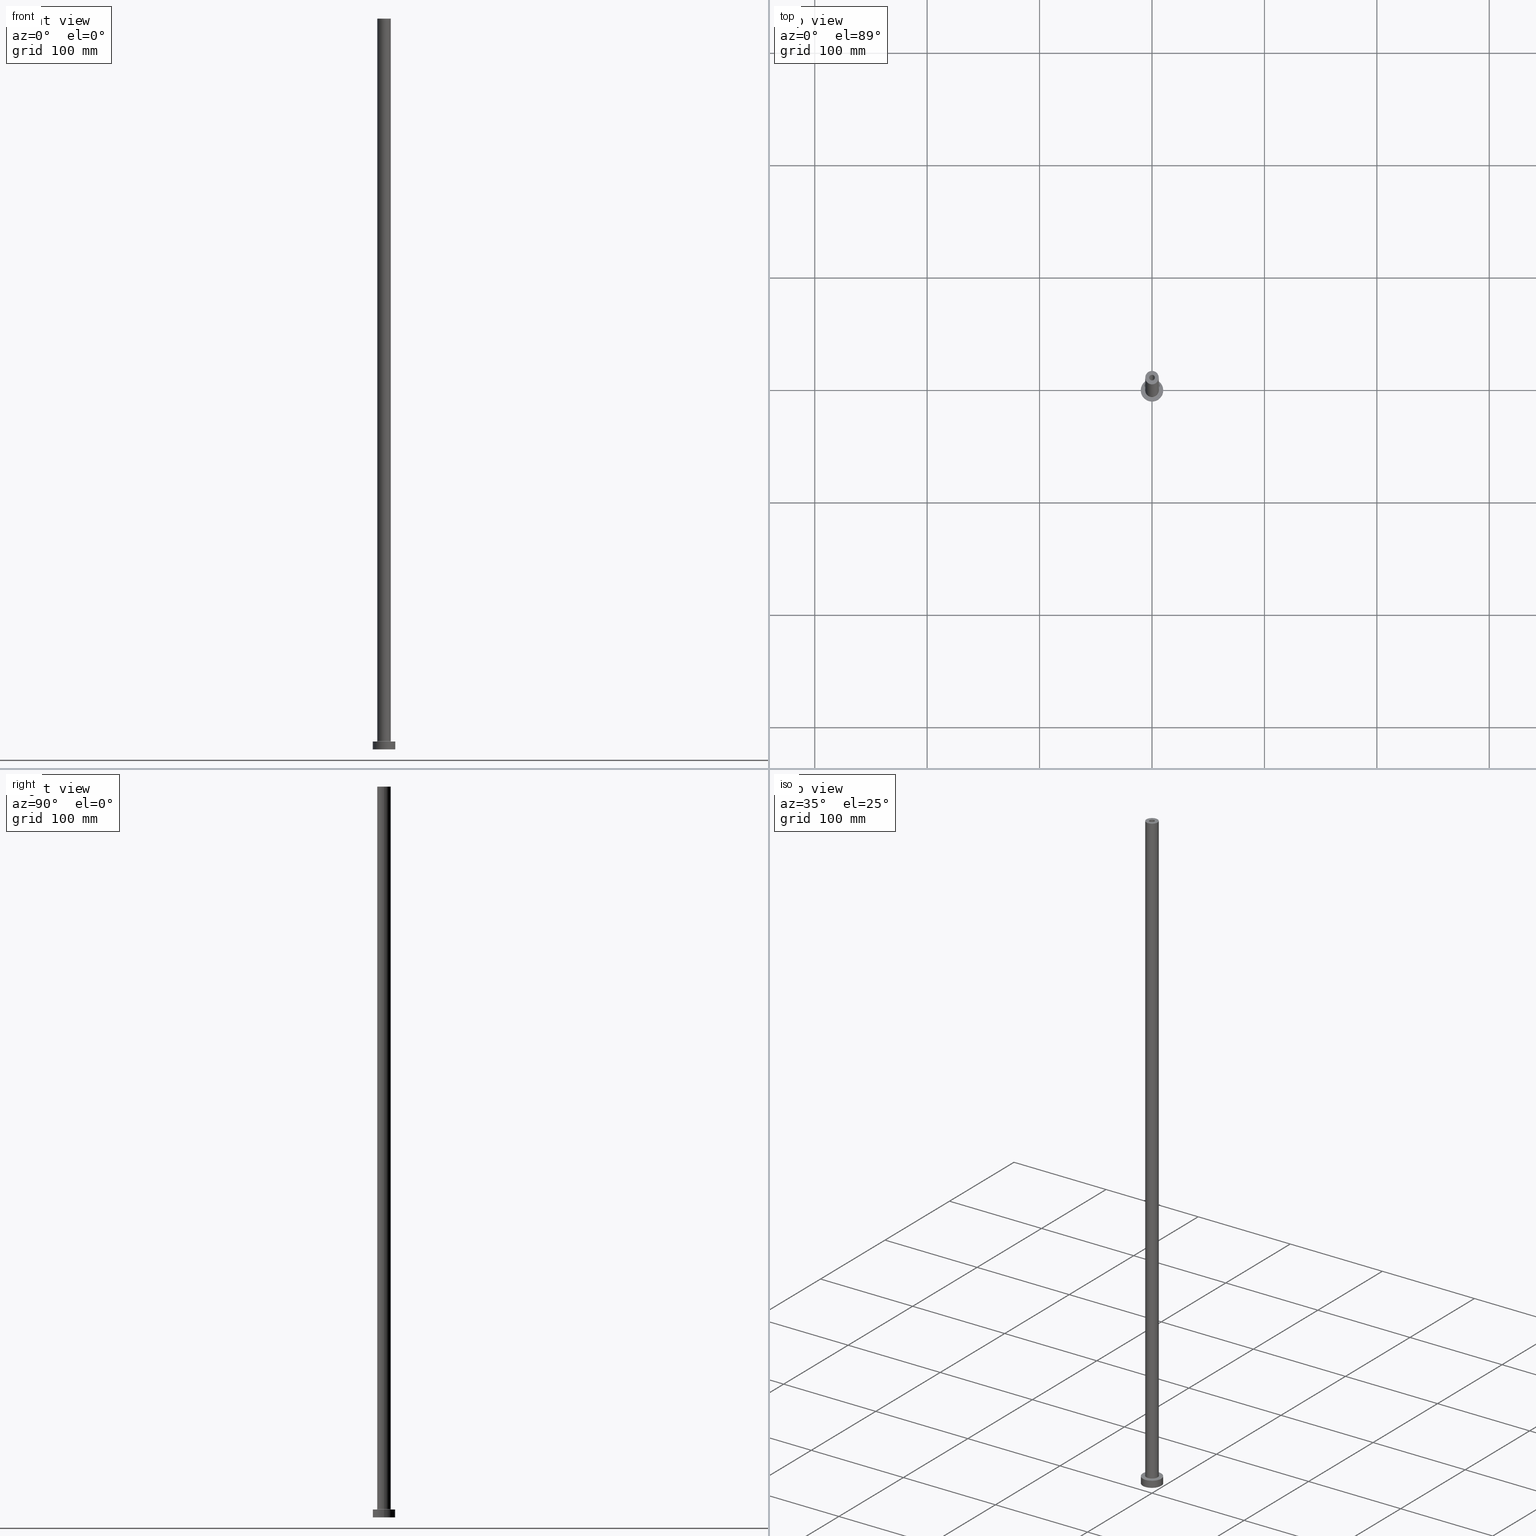
[diagram: canonical four-view strip — front | top / right | iso, engineering-drawing reading convention]
A machine part, canonical four-view strip (front | top / right | iso — engineering-drawing reading convention). The complete STEP part file that produces these views, byte-faithful:
ISO-10303-21;
HEADER;
FILE_DESCRIPTION (( 'STEP AP203' ),
    '1' );
FILE_NAME ('c614.STEP',
    '2023-02-13T16:44:19',
    ( '' ),
    ( '' ),
    'SwSTEP 2.0',
    'SolidWorks 2019',
    '' );
FILE_SCHEMA (( 'CONFIG_CONTROL_DESIGN' ));
ENDSEC;

DATA;
#1 = CARTESIAN_POINT ( 'NONE',  ( 0.000000000000000000, 0.000000000000000000, 7.000000000000000000 ) ) ;
#2 = EDGE_LOOP ( 'NONE', ( #37, #399 ) ) ;
#3 = EDGE_CURVE ( 'NONE', #194, #169, #161, .T. ) ;
#4 = CYLINDRICAL_SURFACE ( 'NONE', #236, 10.00000000000000000 ) ;
#5 = AXIS2_PLACEMENT_3D ( 'NONE', #74, #361, #134 ) ;
#6 = CARTESIAN_POINT ( 'NONE',  ( 2.500000000000000000, 3.061616997868383141E-16, 605.0000000000000000 ) ) ;
#7 = FACE_OUTER_BOUND ( 'NONE', #2, .T. ) ;
#8 = DIRECTION ( 'NONE',  ( 1.000000000000000000, 0.000000000000000000, 0.000000000000000000 ) ) ;
#9 = ORIENTED_EDGE ( 'NONE', *, *, #254, .T. ) ;
#10 = CIRCLE ( 'NONE', #128, 6.000000000000000888 ) ;
#11 = COORDINATED_UNIVERSAL_TIME_OFFSET ( 1, 0, .AHEAD. ) ;
#12 = CARTESIAN_POINT ( 'NONE',  ( 10.00000000000000000, 1.224646799147353256E-15, 7.000000000000000000 ) ) ;
#13 = AXIS2_PLACEMENT_3D ( 'NONE', #96, #208, #384 ) ;
#14 = VERTEX_POINT ( 'NONE', #289 ) ;
#15 = EDGE_CURVE ( 'NONE', #372, #260, #213, .T. ) ;
#16 = DIRECTION ( 'NONE',  ( -1.000000000000000000, 0.000000000000000000, 0.000000000000000000 ) ) ;
#17 = VERTEX_POINT ( 'NONE', #106 ) ;
#18 = LOCAL_TIME ( 17, 44, 19.00000000000000000, #11 ) ;
#19 = ORIENTED_EDGE ( 'NONE', *, *, #352, .T. ) ;
#20 = AXIS2_PLACEMENT_3D ( 'NONE', #86, #238, #51 ) ;
#21 = APPROVAL_ROLE ( '' ) ;
#22 = CARTESIAN_POINT ( 'NONE',  ( -2.500000000000000000, 0.000000000000000000, 650.0000000000000000 ) ) ;
#23 = ORIENTED_EDGE ( 'NONE', *, *, #435, .F. ) ;
#24 = CALENDAR_DATE ( 2023, 13, 2 ) ;
#25 = DIRECTION ( 'NONE',  ( 1.224646799147353207E-16, 1.000000000000000000, -0.000000000000000000 ) ) ;
#26 = EDGE_LOOP ( 'NONE', ( #233, #131, #402, #441 ) ) ;
#27 = LINE ( 'NONE', #382, #201 ) ;
#28 = APPROVAL_PERSON_ORGANIZATION ( #43, #111, #21 ) ;
#29 = ADVANCED_FACE ( 'NONE', ( #292 ), #258, .F. ) ;
#30 = DIRECTION ( 'NONE',  ( -0.000000000000000000, -0.000000000000000000, -1.000000000000000000 ) ) ;
#31 = CARTESIAN_POINT ( 'NONE',  ( -10.00000000000000000, 0.000000000000000000, 0.000000000000000000 ) ) ;
#32 = DIRECTION ( 'NONE',  ( 0.000000000000000000, 0.000000000000000000, 1.000000000000000000 ) ) ;
#33 = CC_DESIGN_PERSON_AND_ORGANIZATION_ASSIGNMENT ( #400, #204, ( #227 ) ) ;
#34 = AXIS2_PLACEMENT_3D ( 'NONE', #288, #100, #291 ) ;
#35 = FACE_OUTER_BOUND ( 'NONE', #187, .T. ) ;
#36 = DIRECTION ( 'NONE',  ( 1.000000000000000000, 0.000000000000000000, 0.000000000000000000 ) ) ;
#37 = ORIENTED_EDGE ( 'NONE', *, *, #443, .T. ) ;
#38 = CARTESIAN_POINT ( 'NONE',  ( 0.000000000000000000, 0.000000000000000000, 7.000000000000000000 ) ) ;
#39 = VECTOR ( 'NONE', #30, 1000.000000000000000 ) ;
#40 = DATE_AND_TIME ( #77, #151 ) ;
#41 = AXIS2_PLACEMENT_3D ( 'NONE', #406, #376, #446 ) ;
#42 = VERTEX_POINT ( 'NONE', #374 ) ;
#43 = PERSON_AND_ORGANIZATION ( #290, #306 ) ;
#44 = DIRECTION ( 'NONE',  ( 0.000000000000000000, 0.000000000000000000, -1.000000000000000000 ) ) ;
#45 = ADVANCED_FACE ( 'NONE', ( #268, #7 ), #114, .T. ) ;
#46 = DIRECTION ( 'NONE',  ( -0.000000000000000000, -0.000000000000000000, -1.000000000000000000 ) ) ;
#47 = EDGE_LOOP ( 'NONE', ( #109, #379 ) ) ;
#48 = AXIS2_PLACEMENT_3D ( 'NONE', #311, #451, #102 ) ;
#49 = FACE_BOUND ( 'NONE', #47, .T. ) ;
#50 = ORIENTED_EDGE ( 'NONE', *, *, #254, .F. ) ;
#51 = DIRECTION ( 'NONE',  ( 1.000000000000000000, 0.000000000000000000, -0.000000000000000000 ) ) ;
#52 = ORIENTED_EDGE ( 'NONE', *, *, #405, .F. ) ;
#53 = CARTESIAN_POINT ( 'NONE',  ( 6.000000000000000888, 7.347880794884120722E-16, 650.0000000000000000 ) ) ;
#54 = PERSON_AND_ORGANIZATION ( #290, #306 ) ;
#55 = AXIS2_PLACEMENT_3D ( 'NONE', #438, #396, #301 ) ;
#56 = DIRECTION ( 'NONE',  ( 1.000000000000000000, 0.000000000000000000, -0.000000000000000000 ) ) ;
#57 = SECURITY_CLASSIFICATION_LEVEL ( 'unclassified' ) ;
#58 = DIRECTION ( 'NONE',  ( 0.000000000000000000, 0.000000000000000000, -1.000000000000000000 ) ) ;
#59 = APPROVAL_ROLE ( '' ) ;
#60 = CARTESIAN_POINT ( 'NONE',  ( 0.000000000000000000, 0.000000000000000000, 650.0000000000000000 ) ) ;
#61 = ADVANCED_FACE ( 'NONE', ( #403 ), #156, .T. ) ;
#62 = VERTEX_POINT ( 'NONE', #266 ) ;
#63 = DIRECTION ( 'NONE',  ( 1.000000000000000000, 0.000000000000000000, -0.000000000000000000 ) ) ;
#64 = CIRCLE ( 'NONE', #158, 2.500000000000000000 ) ;
#65 = ORIENTED_EDGE ( 'NONE', *, *, #336, .F. ) ;
#66 = CARTESIAN_POINT ( 'NONE',  ( 0.000000000000000000, 0.000000000000000000, 0.000000000000000000 ) ) ;
#67 = EDGE_CURVE ( 'NONE', #169, #247, #340, .T. ) ;
#68 = DIRECTION ( 'NONE',  ( 0.000000000000000000, 0.000000000000000000, 1.000000000000000000 ) ) ;
#69 = DIRECTION ( 'NONE',  ( 1.000000000000000000, 0.000000000000000000, 0.000000000000000000 ) ) ;
#70 = CIRCLE ( 'NONE', #34, 2.649999999999999911 ) ;
#71 = AXIS2_PLACEMENT_3D ( 'NONE', #132, #250, #63 ) ;
#72 = DIRECTION ( 'NONE',  ( 1.000000000000000000, 0.000000000000000000, 0.000000000000000000 ) ) ;
#73 = DIRECTION ( 'NONE',  ( 1.000000000000000000, 0.000000000000000000, 0.000000000000000000 ) ) ;
#74 = CARTESIAN_POINT ( 'NONE',  ( 0.000000000000000000, 0.000000000000000000, 605.0000000000000000 ) ) ;
#75 = ORIENTED_EDGE ( 'NONE', *, *, #179, .T. ) ;
#76 = EDGE_CURVE ( 'NONE', #260, #372, #308, .T. ) ;
#77 = CALENDAR_DATE ( 2023, 13, 2 ) ;
#78 = AXIS2_PLACEMENT_3D ( 'NONE', #66, #259, #389 ) ;
#79 = APPROVAL_DATE_TIME ( #272, #362 ) ;
#80 = CARTESIAN_POINT ( 'NONE',  ( 0.000000000000000000, 0.000000000000000000, 7.499999999999951150 ) ) ;
#81 = ORIENTED_EDGE ( 'NONE', *, *, #352, .F. ) ;
#82 = EDGE_CURVE ( 'NONE', #224, #62, #401, .T. ) ;
#83 = CARTESIAN_POINT ( 'NONE',  ( 0.000000000000000000, 0.000000000000000000, 605.0000000000000000 ) ) ;
#84 = ORIENTED_EDGE ( 'NONE', *, *, #155, .T. ) ;
#85 = CARTESIAN_POINT ( 'NONE',  ( -10.00000000000000000, 0.000000000000000000, 7.000000000000000000 ) ) ;
#86 = CARTESIAN_POINT ( 'NONE',  ( 0.000000000000000000, 0.000000000000000000, 7.000000000000000000 ) ) ;
#87 = CARTESIAN_POINT ( 'NONE',  ( 0.000000000000000000, 0.000000000000000000, 7.000000000000000000 ) ) ;
#88 = CARTESIAN_POINT ( 'NONE',  ( -6.500000000000000888, 7.960204194457796463E-16, 6.999999999999975131 ) ) ;
#89 = AXIS2_PLACEMENT_3D ( 'NONE', #137, #99, #69 ) ;
#90 = FACE_OUTER_BOUND ( 'NONE', #323, .T. ) ;
#91 = EDGE_CURVE ( 'NONE', #194, #413, #271, .T. ) ;
#92 = CYLINDRICAL_SURFACE ( 'NONE', #264, 6.000000000000000888 ) ;
#93 = ORIENTED_EDGE ( 'NONE', *, *, #220, .T. ) ;
#94 = UNCERTAINTY_MEASURE_WITH_UNIT (LENGTH_MEASURE( 1.000000000000000082E-05 ), #142, 'distance_accuracy_value', 'NONE');
#95 = LINE ( 'NONE', #356, #39 ) ;
#96 = CARTESIAN_POINT ( 'NONE',  ( 0.000000000000000000, 0.000000000000000000, 0.000000000000000000 ) ) ;
#97 = APPROVAL_PERSON_ORGANIZATION ( #115, #362, #197 ) ;
#98 = AXIS2_PLACEMENT_3D ( 'NONE', #371, #46, #16 ) ;
#99 = DIRECTION ( 'NONE',  ( 0.000000000000000000, 0.000000000000000000, 1.000000000000000000 ) ) ;
#100 = DIRECTION ( 'NONE',  ( -0.000000000000000000, -0.000000000000000000, -1.000000000000000000 ) ) ;
#101 = EDGE_CURVE ( 'NONE', #17, #14, #398, .T. ) ;
#102 = DIRECTION ( 'NONE',  ( 1.000000000000000000, 0.000000000000000000, 0.000000000000000000 ) ) ;
#103 = CIRCLE ( 'NONE', #430, 10.00000000000000000 ) ;
#104 = DIRECTION ( 'NONE',  ( -0.000000000000000000, -0.000000000000000000, -1.000000000000000000 ) ) ;
#105 = ADVANCED_FACE ( 'NONE', ( #116 ), #297, .F. ) ;
#106 = CARTESIAN_POINT ( 'NONE',  ( 2.649999999999999911, 3.245314017740485469E-16, 605.0000000000000000 ) ) ;
#107 = CARTESIAN_POINT ( 'NONE',  ( 2.500000000000000000, 3.061616997868383141E-16, 650.0000000000000000 ) ) ;
#108 = FACE_OUTER_BOUND ( 'NONE', #225, .T. ) ;
#109 = ORIENTED_EDGE ( 'NONE', *, *, #15, .T. ) ;
#110 = ADVANCED_FACE ( 'NONE', ( #108 ), #355, .F. ) ;
#111 = APPROVAL ( #380, 'NEUR�EN�' ) ;
#112 = CALENDAR_DATE ( 2023, 13, 2 ) ;
#113 = AXIS2_PLACEMENT_3D ( 'NONE', #149, #240, #343 ) ;
#114 = PLANE ( 'NONE',  #113 ) ;
#115 = PERSON_AND_ORGANIZATION ( #290, #306 ) ;
#116 = FACE_OUTER_BOUND ( 'NONE', #191, .T. ) ;
#117 = ORIENTED_EDGE ( 'NONE', *, *, #101, .T. ) ;
#118 = FACE_OUTER_BOUND ( 'NONE', #162, .T. ) ;
#119 =( GEOMETRIC_REPRESENTATION_CONTEXT ( 3 ) GLOBAL_UNCERTAINTY_ASSIGNED_CONTEXT ( ( #94 ) ) GLOBAL_UNIT_ASSIGNED_CONTEXT ( ( #142, #335, #274 ) ) REPRESENTATION_CONTEXT ( 'NONE', 'WORKASPACE' ) );
#120 = EDGE_CURVE ( 'NONE', #62, #372, #408, .T. ) ;
#121 = DIRECTION ( 'NONE',  ( -0.000000000000000000, -0.000000000000000000, -1.000000000000000000 ) ) ;
#122 = EDGE_LOOP ( 'NONE', ( #65, #237 ) ) ;
#123 = CARTESIAN_POINT ( 'NONE',  ( 10.00000000000000000, 1.224646799147353256E-15, 7.000000000000000000 ) ) ;
#124 = DATE_TIME_ROLE ( 'creation_date' ) ;
#125 = CARTESIAN_POINT ( 'NONE',  ( 10.00000000000000000, 1.224646799147353256E-15, 0.000000000000000000 ) ) ;
#126 = EDGE_CURVE ( 'NONE', #232, #62, #222, .T. ) ;
#127 = COORDINATED_UNIVERSAL_TIME_OFFSET ( 1, 0, .AHEAD. ) ;
#128 = AXIS2_PLACEMENT_3D ( 'NONE', #257, #214, #394 ) ;
#129 = FACE_OUTER_BOUND ( 'NONE', #434, .T. ) ;
#130 = DIRECTION ( 'NONE',  ( -1.000000000000000000, 0.000000000000000000, 0.000000000000000000 ) ) ;
#131 = ORIENTED_EDGE ( 'NONE', *, *, #443, .F. ) ;
#132 = CARTESIAN_POINT ( 'NONE',  ( 0.000000000000000000, 0.000000000000000000, 605.0000000000000000 ) ) ;
#133 = ORIENTED_EDGE ( 'NONE', *, *, #267, .F. ) ;
#134 = DIRECTION ( 'NONE',  ( 1.000000000000000000, 0.000000000000000000, 0.000000000000000000 ) ) ;
#135 = AXIS2_PLACEMENT_3D ( 'NONE', #176, #219, #327 ) ;
#136 = AXIS2_PLACEMENT_3D ( 'NONE', #83, #302, #147 ) ;
#137 = CARTESIAN_POINT ( 'NONE',  ( 0.000000000000000000, 0.000000000000000000, 605.0000000000000000 ) ) ;
#138 = CARTESIAN_POINT ( 'NONE',  ( 0.000000000000000000, 0.000000000000000000, 7.000000000000000000 ) ) ;
#139 = CARTESIAN_POINT ( 'NONE',  ( 0.000000000000000000, 0.000000000000000000, 0.000000000000000000 ) ) ;
#140 = DIRECTION ( 'NONE',  ( 1.000000000000000000, 0.000000000000000000, 0.000000000000000000 ) ) ;
#141 = ADVANCED_FACE ( 'NONE', ( #49, #118 ), #269, .T. ) ;
#142 =( LENGTH_UNIT ( ) NAMED_UNIT ( * ) SI_UNIT ( .MILLI., .METRE. ) );
#143 = AXIS2_PLACEMENT_3D ( 'NONE', #190, #439, #262 ) ;
#144 = LINE ( 'NONE', #175, #285 ) ;
#145 = VERTEX_POINT ( 'NONE', #273 ) ;
#146 = ADVANCED_FACE ( 'NONE', ( #159, #90 ), #351, .F. ) ;
#147 = DIRECTION ( 'NONE',  ( 1.000000000000000000, 0.000000000000000000, 0.000000000000000000 ) ) ;
#148 = CC_DESIGN_PERSON_AND_ORGANIZATION_ASSIGNMENT ( #450, #265, ( #397 ) ) ;
#149 = CARTESIAN_POINT ( 'NONE',  ( 0.000000000000000000, 0.000000000000000000, 650.0000000000000000 ) ) ;
#150 = ORIENTED_EDGE ( 'NONE', *, *, #336, .T. ) ;
#151 = LOCAL_TIME ( 17, 44, 19.00000000000000000, #411 ) ;
#152 = APPROVAL_STATUS ( 'not_yet_approved' ) ;
#153 = CARTESIAN_POINT ( 'NONE',  ( 6.000000000000000888, 7.347880794884120722E-16, 650.0000000000000000 ) ) ;
#154 = VERTEX_POINT ( 'NONE', #246 ) ;
#155 = EDGE_CURVE ( 'NONE', #344, #390, #27, .T. ) ;
#156 = CYLINDRICAL_SURFACE ( 'NONE', #98, 6.000000000000000888 ) ;
#157 = ORIENTED_EDGE ( 'NONE', *, *, #448, .T. ) ;
#158 = AXIS2_PLACEMENT_3D ( 'NONE', #217, #32, #72 ) ;
#159 = FACE_BOUND ( 'NONE', #458, .T. ) ;
#160 = AXIS2_PLACEMENT_3D ( 'NONE', #337, #444, #44 ) ;
#161 = CIRCLE ( 'NONE', #333, 10.00000000000000000 ) ;
#162 = EDGE_LOOP ( 'NONE', ( #319, #385 ) ) ;
#163 = APPLICATION_PROTOCOL_DEFINITION ( 'international standard', 'config_control_design', 1994, #425 ) ;
#164 = FACE_BOUND ( 'NONE', #442, .T. ) ;
#165 = ADVANCED_FACE ( 'NONE', ( #211 ), #92, .T. ) ;
#166 = ORIENTED_EDGE ( 'NONE', *, *, #82, .T. ) ;
#167 = PERSON_AND_ORGANIZATION_ROLE ( 'design_supplier' ) ;
#168 = FACE_OUTER_BOUND ( 'NONE', #122, .T. ) ;
#169 = VERTEX_POINT ( 'NONE', #123 ) ;
#170 = CALENDAR_DATE ( 2023, 13, 2 ) ;
#171 = CC_DESIGN_SECURITY_CLASSIFICATION ( #227, ( #397 ) ) ;
#172 = PLANE ( 'NONE',  #279 ) ;
#173 = DIRECTION ( 'NONE',  ( -1.000000000000000000, 0.000000000000000000, 0.000000000000000000 ) ) ;
#174 = EDGE_LOOP ( 'NONE', ( #239, #117, #364, #395 ) ) ;
#175 = CARTESIAN_POINT ( 'NONE',  ( -2.649999999999999911, 0.000000000000000000, 612.4953318805775098 ) ) ;
#176 = CARTESIAN_POINT ( 'NONE',  ( 0.000000000000000000, 0.000000000000000000, 650.0000000000000000 ) ) ;
#177 = PRODUCT_DEFINITION_SHAPE ( 'NONE', 'NONE',  #358 ) ;
#178 = EDGE_LOOP ( 'NONE', ( #23, #228 ) ) ;
#179 = EDGE_CURVE ( 'NONE', #154, #321, #440, .T. ) ;
#180 = DIRECTION ( 'NONE',  ( 0.000000000000000000, 0.000000000000000000, 1.000000000000000000 ) ) ;
#181 = EDGE_LOOP ( 'NONE', ( #215, #256, #407, #218 ) ) ;
#182 = DIRECTION ( 'NONE',  ( 1.000000000000000000, 0.000000000000000000, 0.000000000000000000 ) ) ;
#183 = CC_DESIGN_PERSON_AND_ORGANIZATION_ASSIGNMENT ( #54, #231, ( #330 ) ) ;
#184 = DATE_TIME_ROLE ( 'classification_date' ) ;
#185 = DIRECTION ( 'NONE',  ( 1.000000000000000000, 0.000000000000000000, 0.000000000000000000 ) ) ;
#186 = DIRECTION ( 'NONE',  ( -0.000000000000000000, -0.000000000000000000, -1.000000000000000000 ) ) ;
#187 = EDGE_LOOP ( 'NONE', ( #207, #326, #419, #283 ) ) ;
#188 = APPROVAL_DATE_TIME ( #310, #111 ) ;
#189 = CIRCLE ( 'NONE', #135, 6.000000000000000888 ) ;
#190 = CARTESIAN_POINT ( 'NONE',  ( 0.000000000000000000, 0.000000000000000000, 7.499999999999951150 ) ) ;
#191 = EDGE_LOOP ( 'NONE', ( #432, #93, #75, #348 ) ) ;
#192 = EDGE_CURVE ( 'NONE', #232, #260, #325, .T. ) ;
#193 = CARTESIAN_POINT ( 'NONE',  ( 0.000000000000000000, 0.000000000000000000, 612.4953318805775098 ) ) ;
#194 = VERTEX_POINT ( 'NONE', #249 ) ;
#195 = DIRECTION ( 'NONE',  ( 0.000000000000000000, 0.000000000000000000, -1.000000000000000000 ) ) ;
#196 = LOCAL_TIME ( 17, 44, 19.00000000000000000, #226 ) ;
#197 = APPROVAL_ROLE ( '' ) ;
#198 = APPROVAL_PERSON_ORGANIZATION ( #334, #329, #59 ) ;
#199 = ADVANCED_FACE ( 'NONE', ( #164, #168 ), #172, .F. ) ;
#200 = CC_DESIGN_PERSON_AND_ORGANIZATION_ASSIGNMENT ( #369, #244, ( #358 ) ) ;
#201 = VECTOR ( 'NONE', #58, 1000.000000000000000 ) ;
#202 = CARTESIAN_POINT ( 'NONE',  ( -6.000000000000000888, 0.000000000000000000, 7.499999999999951150 ) ) ;
#203 = EDGE_LOOP ( 'NONE', ( #52, #166, #445, #133 ) ) ;
#204 = PERSON_AND_ORGANIZATION_ROLE ( 'classification_officer' ) ;
#205 = ADVANCED_BREP_SHAPE_REPRESENTATION ( 'c614', ( #216, #55 ), #119 ) ;
#206 = CARTESIAN_POINT ( 'NONE',  ( -6.500000000000000888, 7.960204194457796463E-16, 7.499999999999951150 ) ) ;
#207 = ORIENTED_EDGE ( 'NONE', *, *, #192, .F. ) ;
#208 = DIRECTION ( 'NONE',  ( -0.000000000000000000, -0.000000000000000000, -1.000000000000000000 ) ) ;
#209 = ORIENTED_EDGE ( 'NONE', *, *, #315, .T. ) ;
#210 = AXIS2_PLACEMENT_3D ( 'NONE', #253, #180, #388 ) ;
#211 = FACE_OUTER_BOUND ( 'NONE', #203, .T. ) ;
#212 = ADVANCED_FACE ( 'NONE', ( #275 ), #453, .F. ) ;
#213 = CIRCLE ( 'NONE', #300, 6.500000000000000888 ) ;
#214 = DIRECTION ( 'NONE',  ( 0.000000000000000000, 0.000000000000000000, 1.000000000000000000 ) ) ;
#215 = ORIENTED_EDGE ( 'NONE', *, *, #381, .F. ) ;
#216 = MANIFOLD_SOLID_BREP ( 'Odebrat vysunut�m4', #409 ) ;
#217 = CARTESIAN_POINT ( 'NONE',  ( 0.000000000000000000, 0.000000000000000000, 650.0000000000000000 ) ) ;
#218 = ORIENTED_EDGE ( 'NONE', *, *, #91, .F. ) ;
#219 = DIRECTION ( 'NONE',  ( 0.000000000000000000, 0.000000000000000000, 1.000000000000000000 ) ) ;
#220 = EDGE_CURVE ( 'NONE', #17, #154, #378, .T. ) ;
#221 = CIRCLE ( 'NONE', #373, 2.500000000000000000 ) ;
#222 = CIRCLE ( 'NONE', #229, 6.000000000000000888 ) ;
#223 = CARTESIAN_POINT ( 'NONE',  ( 6.500000000000000888, 0.000000000000000000, 6.999999999999975131 ) ) ;
#224 = VERTEX_POINT ( 'NONE', #53 ) ;
#225 = EDGE_LOOP ( 'NONE', ( #303, #243, #370, #447 ) ) ;
#226 = COORDINATED_UNIVERSAL_TIME_OFFSET ( 1, 0, .AHEAD. ) ;
#227 = SECURITY_CLASSIFICATION ( '', '', #57 ) ;
#228 = ORIENTED_EDGE ( 'NONE', *, *, #448, .F. ) ;
#229 = AXIS2_PLACEMENT_3D ( 'NONE', #80, #299, #8 ) ;
#230 = AXIS2_PLACEMENT_3D ( 'NONE', #87, #186, #185 ) ;
#231 = PERSON_AND_ORGANIZATION_ROLE ( 'design_owner' ) ;
#232 = VERTEX_POINT ( 'NONE', #202 ) ;
#233 = ORIENTED_EDGE ( 'NONE', *, *, #82, .F. ) ;
#234 = ADVANCED_FACE ( 'NONE', ( #129 ), #420, .F. ) ;
#235 = DIRECTION ( 'NONE',  ( -1.000000000000000000, 0.000000000000000000, 0.000000000000000000 ) ) ;
#236 = AXIS2_PLACEMENT_3D ( 'NONE', #1, #427, #255 ) ;
#237 = ORIENTED_EDGE ( 'NONE', *, *, #365, .F. ) ;
#238 = DIRECTION ( 'NONE',  ( 0.000000000000000000, 0.000000000000000000, 1.000000000000000000 ) ) ;
#239 = ORIENTED_EDGE ( 'NONE', *, *, #220, .F. ) ;
#240 = DIRECTION ( 'NONE',  ( 0.000000000000000000, 0.000000000000000000, 1.000000000000000000 ) ) ;
#241 = ORIENTED_EDGE ( 'NONE', *, *, #3, .F. ) ;
#242 = DIRECTION ( 'NONE',  ( -0.000000000000000000, -0.000000000000000000, -1.000000000000000000 ) ) ;
#243 = ORIENTED_EDGE ( 'NONE', *, *, #192, .T. ) ;
#244 = PERSON_AND_ORGANIZATION_ROLE ( 'creator' ) ;
#245 = AXIS2_PLACEMENT_3D ( 'NONE', #318, #423, #383 ) ;
#246 = CARTESIAN_POINT ( 'NONE',  ( 2.649999999999999911, 3.245314017740485469E-16, 0.000000000000000000 ) ) ;
#247 = VERTEX_POINT ( 'NONE', #125 ) ;
#248 = APPROVAL_DATE_TIME ( #417, #329 ) ;
#249 = CARTESIAN_POINT ( 'NONE',  ( -10.00000000000000000, 0.000000000000000000, 7.000000000000000000 ) ) ;
#250 = DIRECTION ( 'NONE',  ( 0.000000000000000000, 0.000000000000000000, 1.000000000000000000 ) ) ;
#251 = CIRCLE ( 'NONE', #339, 10.00000000000000000 ) ;
#252 = DIRECTION ( 'NONE',  ( 0.000000000000000000, 0.000000000000000000, -1.000000000000000000 ) ) ;
#253 = CARTESIAN_POINT ( 'NONE',  ( 0.000000000000000000, 0.000000000000000000, 7.499999999999951150 ) ) ;
#254 = EDGE_CURVE ( 'NONE', #307, #145, #280, .T. ) ;
#255 = DIRECTION ( 'NONE',  ( -1.000000000000000000, 0.000000000000000000, 0.000000000000000000 ) ) ;
#256 = ORIENTED_EDGE ( 'NONE', *, *, #67, .T. ) ;
#257 = CARTESIAN_POINT ( 'NONE',  ( 0.000000000000000000, 0.000000000000000000, 650.0000000000000000 ) ) ;
#258 = CYLINDRICAL_SURFACE ( 'NONE', #41, 2.500000000000000000 ) ;
#259 = DIRECTION ( 'NONE',  ( 0.000000000000000000, 0.000000000000000000, 1.000000000000000000 ) ) ;
#260 = VERTEX_POINT ( 'NONE', #88 ) ;
#261 = APPLICATION_PROTOCOL_DEFINITION ( 'international standard', 'config_control_design', 1994, #431 ) ;
#262 = DIRECTION ( 'NONE',  ( 1.000000000000000000, 0.000000000000000000, 0.000000000000000000 ) ) ;
#263 = ORIENTED_EDGE ( 'NONE', *, *, #315, .F. ) ;
#264 = AXIS2_PLACEMENT_3D ( 'NONE', #284, #415, #130 ) ;
#265 = PERSON_AND_ORGANIZATION_ROLE ( 'creator' ) ;
#266 = CARTESIAN_POINT ( 'NONE',  ( 6.000000000000000888, 7.347880794884120722E-16, 7.499999999999951150 ) ) ;
#267 = EDGE_CURVE ( 'NONE', #42, #232, #95, .T. ) ;
#268 = FACE_BOUND ( 'NONE', #178, .T. ) ;
#269 = PLANE ( 'NONE',  #20 ) ;
#270 = AXIS2_PLACEMENT_3D ( 'NONE', #426, #68, #295 ) ;
#271 = LINE ( 'NONE', #85, #332 ) ;
#272 = DATE_AND_TIME ( #298, #459 ) ;
#273 = CARTESIAN_POINT ( 'NONE',  ( -2.500000000000000000, 0.000000000000000000, 605.0000000000000000 ) ) ;
#274 =( NAMED_UNIT ( * ) SI_UNIT ( $, .STERADIAN. ) SOLID_ANGLE_UNIT ( ) );
#275 = FACE_OUTER_BOUND ( 'NONE', #174, .T. ) ;
#276 = APPROVAL_STATUS ( 'not_yet_approved' ) ;
#277 = AXIS2_PLACEMENT_3D ( 'NONE', #60, #195, #173 ) ;
#278 = CC_DESIGN_DATE_AND_TIME_ASSIGNMENT ( #312, #184, ( #227 ) ) ;
#279 = AXIS2_PLACEMENT_3D ( 'NONE', #455, #313, #56 ) ;
#280 = LINE ( 'NONE', #412, #404 ) ;
#281 = DESIGN_CONTEXT ( 'detailed design', #425, 'design' ) ;
#282 = CARTESIAN_POINT ( 'NONE',  ( 2.649999999999999911, 3.245314017740485469E-16, 612.4953318805775098 ) ) ;
#283 = ORIENTED_EDGE ( 'NONE', *, *, #76, .F. ) ;
#284 = CARTESIAN_POINT ( 'NONE',  ( 0.000000000000000000, 0.000000000000000000, 650.0000000000000000 ) ) ;
#285 = VECTOR ( 'NONE', #391, 1000.000000000000000 ) ;
#286 = ADVANCED_FACE ( 'NONE', ( #309 ), #320, .T. ) ;
#287 = VECTOR ( 'NONE', #345, 1000.000000000000000 ) ;
#288 = CARTESIAN_POINT ( 'NONE',  ( 0.000000000000000000, 0.000000000000000000, 0.000000000000000000 ) ) ;
#289 = CARTESIAN_POINT ( 'NONE',  ( -2.649999999999999911, 0.000000000000000000, 605.0000000000000000 ) ) ;
#290 = PERSON ( 'NEUR�EN�', 'NEUR�EN�', 'NEUR�EN�', ('NEUR�EN�'), ('NEUR�EN�'), ('NEUR�EN�') ) ;
#291 = DIRECTION ( 'NONE',  ( 1.000000000000000000, 0.000000000000000000, 0.000000000000000000 ) ) ;
#292 = FACE_OUTER_BOUND ( 'NONE', #346, .T. ) ;
#293 = AXIS2_PLACEMENT_3D ( 'NONE', #457, #242, #350 ) ;
#294 = CC_DESIGN_PERSON_AND_ORGANIZATION_ASSIGNMENT ( #338, #167, ( #397 ) ) ;
#295 = DIRECTION ( 'NONE',  ( 1.000000000000000000, 0.000000000000000000, 0.000000000000000000 ) ) ;
#296 = CARTESIAN_POINT ( 'NONE',  ( -2.649999999999999911, 0.000000000000000000, 0.000000000000000000 ) ) ;
#297 = CYLINDRICAL_SURFACE ( 'NONE', #317, 2.649999999999999911 ) ;
#298 = CALENDAR_DATE ( 2023, 13, 2 ) ;
#299 = DIRECTION ( 'NONE',  ( 0.000000000000000000, 0.000000000000000000, 1.000000000000000000 ) ) ;
#300 = AXIS2_PLACEMENT_3D ( 'NONE', #328, #104, #140 ) ;
#301 = DIRECTION ( 'NONE',  ( 1.000000000000000000, 0.000000000000000000, 0.000000000000000000 ) ) ;
#302 = DIRECTION ( 'NONE',  ( 0.000000000000000000, 0.000000000000000000, 1.000000000000000000 ) ) ;
#303 = ORIENTED_EDGE ( 'NONE', *, *, #126, .F. ) ;
#304 = DIRECTION ( 'NONE',  ( -0.000000000000000000, -0.000000000000000000, -1.000000000000000000 ) ) ;
#305 = ORIENTED_EDGE ( 'NONE', *, *, #67, .F. ) ;
#306 = ORGANIZATION ( 'NEUR�EN�', 'NEUR�EN�', '' ) ;
#307 = VERTEX_POINT ( 'NONE', #22 ) ;
#308 = CIRCLE ( 'NONE', #230, 6.500000000000000888 ) ;
#309 = FACE_OUTER_BOUND ( 'NONE', #181, .T. ) ;
#310 = DATE_AND_TIME ( #112, #196 ) ;
#311 = CARTESIAN_POINT ( 'NONE',  ( 0.000000000000000000, 0.000000000000000000, 605.0000000000000000 ) ) ;
#312 = DATE_AND_TIME ( #24, #18 ) ;
#313 = DIRECTION ( 'NONE',  ( 0.000000000000000000, 0.000000000000000000, 1.000000000000000000 ) ) ;
#314 = CIRCLE ( 'NONE', #89, 2.500000000000000000 ) ;
#315 = EDGE_CURVE ( 'NONE', #390, #145, #416, .T. ) ;
#316 = SHAPE_DEFINITION_REPRESENTATION ( #177, #205 ) ;
#317 = AXIS2_PLACEMENT_3D ( 'NONE', #193, #436, #235 ) ;
#318 = CARTESIAN_POINT ( 'NONE',  ( 0.000000000000000000, 0.000000000000000000, 612.4953318805775098 ) ) ;
#319 = ORIENTED_EDGE ( 'NONE', *, *, #3, .T. ) ;
#320 = CYLINDRICAL_SURFACE ( 'NONE', #293, 10.00000000000000000 ) ;
#321 = VERTEX_POINT ( 'NONE', #296 ) ;
#322 = CC_DESIGN_DATE_AND_TIME_ASSIGNMENT ( #40, #124, ( #358 ) ) ;
#323 = EDGE_LOOP ( 'NONE', ( #428, #341 ) ) ;
#324 = CARTESIAN_POINT ( 'NONE',  ( 0.000000000000000000, 0.000000000000000000, 650.0000000000000000 ) ) ;
#325 = CIRCLE ( 'NONE', #342, 0.5000000000000004441 ) ;
#326 = ORIENTED_EDGE ( 'NONE', *, *, #429, .F. ) ;
#327 = DIRECTION ( 'NONE',  ( 1.000000000000000000, 0.000000000000000000, 0.000000000000000000 ) ) ;
#328 = CARTESIAN_POINT ( 'NONE',  ( 0.000000000000000000, 0.000000000000000000, 7.000000000000000000 ) ) ;
#329 = APPROVAL ( #276, 'NEUR�EN�' ) ;
#330 = PRODUCT ( 'c614', 'c614', '', ( #367 ) ) ;
#331 = ADVANCED_FACE ( 'NONE', ( #387 ), #4, .T. ) ;
#332 = VECTOR ( 'NONE', #304, 1000.000000000000000 ) ;
#333 = AXIS2_PLACEMENT_3D ( 'NONE', #138, #393, #73 ) ;
#334 = PERSON_AND_ORGANIZATION ( #290, #306 ) ;
#335 =( NAMED_UNIT ( * ) PLANE_ANGLE_UNIT ( ) SI_UNIT ( $, .RADIAN. ) );
#336 = EDGE_CURVE ( 'NONE', #413, #247, #360, .T. ) ;
#337 = CARTESIAN_POINT ( 'NONE',  ( 6.500000000000000888, 0.000000000000000000, 7.499999999999951150 ) ) ;
#338 = PERSON_AND_ORGANIZATION ( #290, #306 ) ;
#339 = AXIS2_PLACEMENT_3D ( 'NONE', #38, #359, #182 ) ;
#340 = LINE ( 'NONE', #12, #368 ) ;
#341 = ORIENTED_EDGE ( 'NONE', *, *, #101, .F. ) ;
#342 = AXIS2_PLACEMENT_3D ( 'NONE', #206, #25, #353 ) ;
#343 = DIRECTION ( 'NONE',  ( 1.000000000000000000, 0.000000000000000000, -0.000000000000000000 ) ) ;
#344 = VERTEX_POINT ( 'NONE', #107 ) ;
#345 = DIRECTION ( 'NONE',  ( -0.000000000000000000, -0.000000000000000000, -1.000000000000000000 ) ) ;
#346 = EDGE_LOOP ( 'NONE', ( #375, #84, #81, #50 ) ) ;
#347 = CIRCLE ( 'NONE', #270, 6.000000000000000888 ) ;
#348 = ORIENTED_EDGE ( 'NONE', *, *, #414, .F. ) ;
#349 = COORDINATED_UNIVERSAL_TIME_OFFSET ( 1, 0, .AHEAD. ) ;
#350 = DIRECTION ( 'NONE',  ( -1.000000000000000000, 0.000000000000000000, 0.000000000000000000 ) ) ;
#351 = PLANE ( 'NONE',  #71 ) ;
#352 = EDGE_CURVE ( 'NONE', #145, #390, #314, .T. ) ;
#353 = DIRECTION ( 'NONE',  ( -1.000000000000000000, 1.224646799147351482E-16, 0.000000000000000000 ) ) ;
#354 = VECTOR ( 'NONE', #252, 1000.000000000000000 ) ;
#355 = TOROIDAL_SURFACE ( 'NONE', #143, 6.500000000000000888, 0.5000000000000000000 ) ;
#356 = CARTESIAN_POINT ( 'NONE',  ( -6.000000000000000888, 0.000000000000000000, 650.0000000000000000 ) ) ;
#357 = ORIENTED_EDGE ( 'NONE', *, *, #456, .F. ) ;
#358 = PRODUCT_DEFINITION ( 'NEZN�M�', '', #397, #281 ) ;
#359 = DIRECTION ( 'NONE',  ( 0.000000000000000000, 0.000000000000000000, 1.000000000000000000 ) ) ;
#360 = CIRCLE ( 'NONE', #78, 10.00000000000000000 ) ;
#361 = DIRECTION ( 'NONE',  ( 0.000000000000000000, 0.000000000000000000, 1.000000000000000000 ) ) ;
#362 = APPROVAL ( #152, 'NEUR�EN�' ) ;
#363 = DIRECTION ( 'NONE',  ( 0.000000000000000000, 0.000000000000000000, 1.000000000000000000 ) ) ;
#364 = ORIENTED_EDGE ( 'NONE', *, *, #414, .T. ) ;
#365 = EDGE_CURVE ( 'NONE', #247, #413, #103, .T. ) ;
#366 = CC_DESIGN_APPROVAL ( #362, ( #358 ) ) ;
#367 = MECHANICAL_CONTEXT ( 'NONE', #431, 'mechanical' ) ;
#368 = VECTOR ( 'NONE', #121, 1000.000000000000000 ) ;
#369 = PERSON_AND_ORGANIZATION ( #290, #306 ) ;
#370 = ORIENTED_EDGE ( 'NONE', *, *, #15, .F. ) ;
#371 = CARTESIAN_POINT ( 'NONE',  ( 0.000000000000000000, 0.000000000000000000, 650.0000000000000000 ) ) ;
#372 = VERTEX_POINT ( 'NONE', #223 ) ;
#373 = AXIS2_PLACEMENT_3D ( 'NONE', #324, #363, #36 ) ;
#374 = CARTESIAN_POINT ( 'NONE',  ( -6.000000000000000888, 0.000000000000000000, 650.0000000000000000 ) ) ;
#375 = ORIENTED_EDGE ( 'NONE', *, *, #435, .T. ) ;
#376 = DIRECTION ( 'NONE',  ( 0.000000000000000000, 0.000000000000000000, -1.000000000000000000 ) ) ;
#377 = EDGE_LOOP ( 'NONE', ( #305, #241, #452, #150 ) ) ;
#378 = LINE ( 'NONE', #282, #354 ) ;
#379 = ORIENTED_EDGE ( 'NONE', *, *, #76, .T. ) ;
#380 = APPROVAL_STATUS ( 'not_yet_approved' ) ;
#381 = EDGE_CURVE ( 'NONE', #169, #194, #251, .T. ) ;
#382 = CARTESIAN_POINT ( 'NONE',  ( 2.500000000000000000, 3.061616997868383141E-16, 650.0000000000000000 ) ) ;
#383 = DIRECTION ( 'NONE',  ( -1.000000000000000000, 0.000000000000000000, 0.000000000000000000 ) ) ;
#384 = DIRECTION ( 'NONE',  ( 1.000000000000000000, 0.000000000000000000, 0.000000000000000000 ) ) ;
#385 = ORIENTED_EDGE ( 'NONE', *, *, #381, .T. ) ;
#386 = CIRCLE ( 'NONE', #5, 2.649999999999999911 ) ;
#387 = FACE_OUTER_BOUND ( 'NONE', #377, .T. ) ;
#388 = DIRECTION ( 'NONE',  ( 1.000000000000000000, 0.000000000000000000, 0.000000000000000000 ) ) ;
#389 = DIRECTION ( 'NONE',  ( 1.000000000000000000, 0.000000000000000000, 0.000000000000000000 ) ) ;
#390 = VERTEX_POINT ( 'NONE', #6 ) ;
#391 = DIRECTION ( 'NONE',  ( 0.000000000000000000, 0.000000000000000000, -1.000000000000000000 ) ) ;
#392 = EDGE_CURVE ( 'NONE', #14, #17, #386, .T. ) ;
#393 = DIRECTION ( 'NONE',  ( 0.000000000000000000, 0.000000000000000000, 1.000000000000000000 ) ) ;
#394 = DIRECTION ( 'NONE',  ( 1.000000000000000000, 0.000000000000000000, 0.000000000000000000 ) ) ;
#395 = ORIENTED_EDGE ( 'NONE', *, *, #456, .T. ) ;
#396 = DIRECTION ( 'NONE',  ( 0.000000000000000000, 0.000000000000000000, 1.000000000000000000 ) ) ;
#397 = PRODUCT_DEFINITION_FORMATION_WITH_SPECIFIED_SOURCE ( 'LIBOVOLN�', '', #330, .NOT_KNOWN. ) ;
#398 = CIRCLE ( 'NONE', #136, 2.649999999999999911 ) ;
#399 = ORIENTED_EDGE ( 'NONE', *, *, #405, .T. ) ;
#400 = PERSON_AND_ORGANIZATION ( #290, #306 ) ;
#401 = LINE ( 'NONE', #153, #287 ) ;
#402 = ORIENTED_EDGE ( 'NONE', *, *, #267, .T. ) ;
#403 = FACE_OUTER_BOUND ( 'NONE', #26, .T. ) ;
#404 = VECTOR ( 'NONE', #418, 1000.000000000000000 ) ;
#405 = EDGE_CURVE ( 'NONE', #224, #42, #10, .T. ) ;
#406 = CARTESIAN_POINT ( 'NONE',  ( 0.000000000000000000, 0.000000000000000000, 650.0000000000000000 ) ) ;
#407 = ORIENTED_EDGE ( 'NONE', *, *, #365, .T. ) ;
#408 = CIRCLE ( 'NONE', #160, 0.5000000000000004441 ) ;
#409 = CLOSED_SHELL ( 'NONE', ( #29, #105, #110, #165, #286, #331, #141, #199, #61, #45, #421, #212, #146, #234 ) ) ;
#410 = PRODUCT_RELATED_PRODUCT_CATEGORY ( 'detail', '', ( #330 ) ) ;
#411 = COORDINATED_UNIVERSAL_TIME_OFFSET ( 1, 0, .AHEAD. ) ;
#412 = CARTESIAN_POINT ( 'NONE',  ( -2.500000000000000000, 0.000000000000000000, 650.0000000000000000 ) ) ;
#413 = VERTEX_POINT ( 'NONE', #31 ) ;
#414 = EDGE_CURVE ( 'NONE', #14, #321, #144, .T. ) ;
#415 = DIRECTION ( 'NONE',  ( -0.000000000000000000, -0.000000000000000000, -1.000000000000000000 ) ) ;
#416 = CIRCLE ( 'NONE', #48, 2.500000000000000000 ) ;
#417 = DATE_AND_TIME ( #170, #454 ) ;
#418 = DIRECTION ( 'NONE',  ( 0.000000000000000000, 0.000000000000000000, -1.000000000000000000 ) ) ;
#419 = ORIENTED_EDGE ( 'NONE', *, *, #120, .T. ) ;
#420 = CYLINDRICAL_SURFACE ( 'NONE', #277, 2.500000000000000000 ) ;
#421 = ADVANCED_FACE ( 'NONE', ( #35 ), #437, .F. ) ;
#422 = ORIENTED_EDGE ( 'NONE', *, *, #155, .F. ) ;
#423 = DIRECTION ( 'NONE',  ( 0.000000000000000000, 0.000000000000000000, -1.000000000000000000 ) ) ;
#424 = CC_DESIGN_APPROVAL ( #111, ( #397 ) ) ;
#425 = APPLICATION_CONTEXT ( 'configuration controlled 3d designs of mechanical parts and assemblies' ) ;
#426 = CARTESIAN_POINT ( 'NONE',  ( 0.000000000000000000, 0.000000000000000000, 7.499999999999951150 ) ) ;
#427 = DIRECTION ( 'NONE',  ( -0.000000000000000000, -0.000000000000000000, -1.000000000000000000 ) ) ;
#428 = ORIENTED_EDGE ( 'NONE', *, *, #392, .F. ) ;
#429 = EDGE_CURVE ( 'NONE', #62, #232, #347, .T. ) ;
#430 = AXIS2_PLACEMENT_3D ( 'NONE', #139, #460, #433 ) ;
#431 = APPLICATION_CONTEXT ( 'configuration controlled 3d designs of mechanical parts and assemblies' ) ;
#432 = ORIENTED_EDGE ( 'NONE', *, *, #392, .T. ) ;
#433 = DIRECTION ( 'NONE',  ( 1.000000000000000000, 0.000000000000000000, 0.000000000000000000 ) ) ;
#434 = EDGE_LOOP ( 'NONE', ( #422, #157, #9, #263 ) ) ;
#435 = EDGE_CURVE ( 'NONE', #307, #344, #64, .T. ) ;
#436 = DIRECTION ( 'NONE',  ( 0.000000000000000000, 0.000000000000000000, -1.000000000000000000 ) ) ;
#437 = TOROIDAL_SURFACE ( 'NONE', #210, 6.500000000000000888, 0.5000000000000000000 ) ;
#438 = CARTESIAN_POINT ( 'NONE',  ( 0.000000000000000000, 0.000000000000000000, 0.000000000000000000 ) ) ;
#439 = DIRECTION ( 'NONE',  ( 0.000000000000000000, 0.000000000000000000, 1.000000000000000000 ) ) ;
#440 = CIRCLE ( 'NONE', #13, 2.649999999999999911 ) ;
#441 = ORIENTED_EDGE ( 'NONE', *, *, #126, .T. ) ;
#442 = EDGE_LOOP ( 'NONE', ( #357, #449 ) ) ;
#443 = EDGE_CURVE ( 'NONE', #42, #224, #189, .T. ) ;
#444 = DIRECTION ( 'NONE',  ( 0.000000000000000000, -1.000000000000000000, 0.000000000000000000 ) ) ;
#445 = ORIENTED_EDGE ( 'NONE', *, *, #429, .T. ) ;
#446 = DIRECTION ( 'NONE',  ( -1.000000000000000000, 0.000000000000000000, 0.000000000000000000 ) ) ;
#447 = ORIENTED_EDGE ( 'NONE', *, *, #120, .F. ) ;
#448 = EDGE_CURVE ( 'NONE', #344, #307, #221, .T. ) ;
#449 = ORIENTED_EDGE ( 'NONE', *, *, #179, .F. ) ;
#450 = PERSON_AND_ORGANIZATION ( #290, #306 ) ;
#451 = DIRECTION ( 'NONE',  ( 0.000000000000000000, 0.000000000000000000, 1.000000000000000000 ) ) ;
#452 = ORIENTED_EDGE ( 'NONE', *, *, #91, .T. ) ;
#453 = CYLINDRICAL_SURFACE ( 'NONE', #245, 2.649999999999999911 ) ;
#454 = LOCAL_TIME ( 17, 44, 19.00000000000000000, #127 ) ;
#455 = CARTESIAN_POINT ( 'NONE',  ( 0.000000000000000000, 0.000000000000000000, 0.000000000000000000 ) ) ;
#456 = EDGE_CURVE ( 'NONE', #321, #154, #70, .T. ) ;
#457 = CARTESIAN_POINT ( 'NONE',  ( 0.000000000000000000, 0.000000000000000000, 7.000000000000000000 ) ) ;
#458 = EDGE_LOOP ( 'NONE', ( #19, #209 ) ) ;
#459 = LOCAL_TIME ( 17, 44, 19.00000000000000000, #349 ) ;
#460 = DIRECTION ( 'NONE',  ( 0.000000000000000000, 0.000000000000000000, 1.000000000000000000 ) ) ;
#461 = CC_DESIGN_APPROVAL ( #329, ( #227 ) ) ;
ENDSEC;
END-ISO-10303-21;
